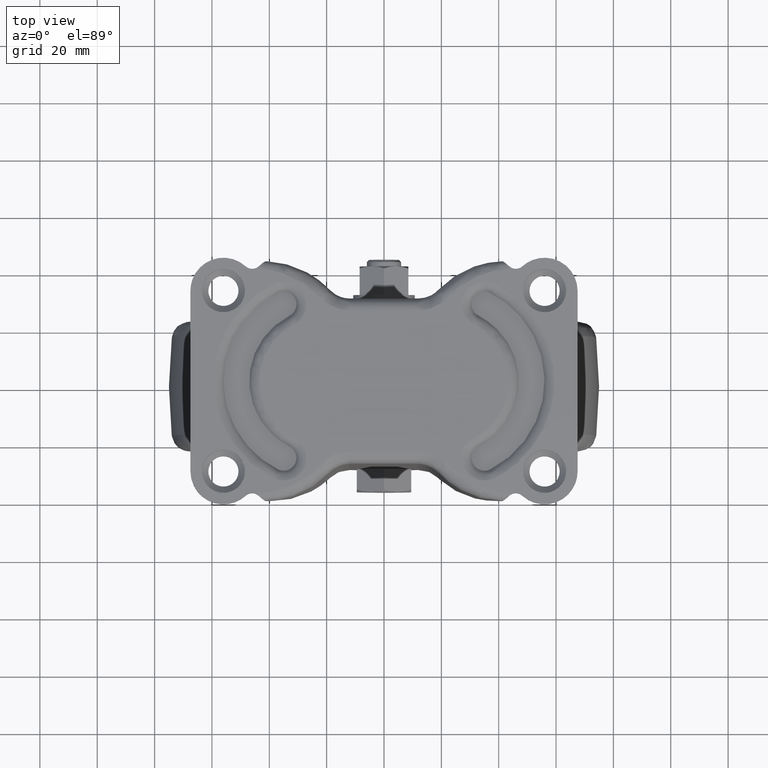
[diagram: clean part render]
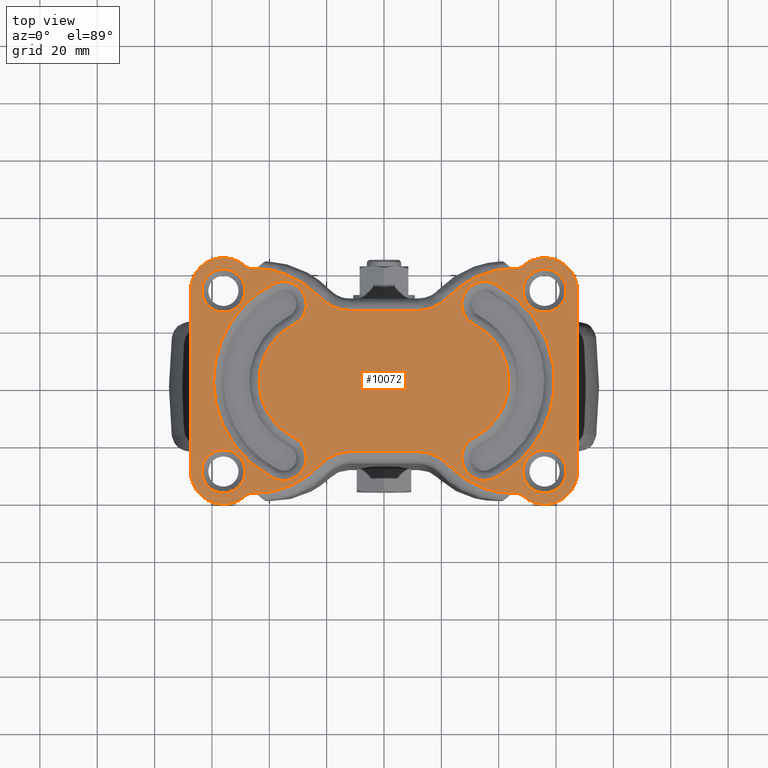
[diagram: same view with one face highlighted and labeled with its STEP entity id]
A machine part, top view. The second image highlights one B-rep face of the part: STEP entity #10072.
In plain terms, the highlighted face is a freeform B-spline surface patch.
Its self-contained STEP definition (entity closure, byte-faithful):
#4401=CARTESIAN_POINT('',(-56.457864046673372,38.986010988154092,-5.204170E-017));
#4402=VERTEX_POINT('',#4401);
#4403=CARTESIAN_POINT('',(-48.500000000000000,31.500000000000000,0.0));
#4404=VERTEX_POINT('',#4403);
#4405=CARTESIAN_POINT('',(-56.457864046673357,38.986010988154099,0.0));
#4406=CARTESIAN_POINT('',(-56.229145724820611,39.000000000000007,0.0));
#4407=CARTESIAN_POINT('',(-56.0,39.0,0.0));
#4408=CARTESIAN_POINT('',(-48.500000000000014,39.0,0.0));
#4409=CARTESIAN_POINT('',(-48.500000000000000,31.500000000000000,0.0));
#4417=(BOUNDED_CURVE()B_SPLINE_CURVE(2,(#4405,#4406,#4407,#4408,#4409),.UNSPECIFIED.,.F.,.U.)B_SPLINE_CURVE_WITH_KNOTS((3,2,3),(0.239332962238236,0.250000000000000,0.500000000000000),.UNSPECIFIED.)CURVE()GEOMETRIC_REPRESENTATION_ITEM()RATIONAL_B_SPLINE_CURVE((0.976072041665202,0.987502787899009,1.0,0.707106781186547,1.0))REPRESENTATION_ITEM(''));
#4418=EDGE_CURVE('',#4402,#4404,#4417,.T.);
#4427=CARTESIAN_POINT('',(-55.542135953326628,24.013989011845901,-5.204170E-017));
#4428=VERTEX_POINT('',#4427);
#4434=CARTESIAN_POINT('',(-48.500000000000000,31.500000000000000,0.0));
#4435=CARTESIAN_POINT('',(-48.500000000000000,24.444704498360196,0.0));
#4436=CARTESIAN_POINT('',(-55.542135953326635,24.013989011845904,0.0));
#4444=(BOUNDED_CURVE()B_SPLINE_CURVE(2,(#4434,#4435,#4436),.UNSPECIFIED.,.F.,.U.)B_SPLINE_CURVE_WITH_KNOTS((3,3),(0.500000000000000,0.739332962238236),.UNSPECIFIED.)CURVE()GEOMETRIC_REPRESENTATION_ITEM()RATIONAL_B_SPLINE_CURVE((1.0,0.719603993287539,0.976072041665202))REPRESENTATION_ITEM(''));
#4445=EDGE_CURVE('',#4404,#4428,#4444,.T.);
#4468=CARTESIAN_POINT('',(-63.500000000000000,31.500000000000000,0.0));
#4469=VERTEX_POINT('',#4468);
#4470=CARTESIAN_POINT('',(-63.500000000000000,31.500000000000000,0.0));
#4471=CARTESIAN_POINT('',(-63.500000000000000,38.555295501639804,0.0));
#4472=CARTESIAN_POINT('',(-56.457864046673372,38.986010988154099,0.0));
#4480=(BOUNDED_CURVE()B_SPLINE_CURVE(2,(#4470,#4471,#4472),.UNSPECIFIED.,.F.,.U.)B_SPLINE_CURVE_WITH_KNOTS((3,3),(0.0,0.239332962238236),.UNSPECIFIED.)CURVE()GEOMETRIC_REPRESENTATION_ITEM()RATIONAL_B_SPLINE_CURVE((1.0,0.719603993287539,0.976072041665202))REPRESENTATION_ITEM(''));
#4481=EDGE_CURVE('',#4469,#4402,#4480,.T.);
#4483=CARTESIAN_POINT('',(-55.542135953326635,24.013989011845904,0.0));
#4484=CARTESIAN_POINT('',(-55.770854275179374,24.000000000000007,0.0));
#4485=CARTESIAN_POINT('',(-56.0,24.0,0.0));
#4486=CARTESIAN_POINT('',(-63.499999999999993,24.0,0.0));
#4487=CARTESIAN_POINT('',(-63.500000000000000,31.500000000000000,0.0));
#4495=(BOUNDED_CURVE()B_SPLINE_CURVE(2,(#4483,#4484,#4485,#4486,#4487),.UNSPECIFIED.,.F.,.U.)B_SPLINE_CURVE_WITH_KNOTS((3,2,3),(0.739332962238236,0.750000000000000,1.0),.UNSPECIFIED.)CURVE()GEOMETRIC_REPRESENTATION_ITEM()RATIONAL_B_SPLINE_CURVE((0.976072041665202,0.987502787899009,1.0,0.707106781186547,1.0))REPRESENTATION_ITEM(''));
#4496=EDGE_CURVE('',#4428,#4469,#4495,.T.);
#4523=CARTESIAN_POINT('',(-56.457864046673372,-24.013989011845901,-5.204170E-017));
#4524=VERTEX_POINT('',#4523);
#4525=CARTESIAN_POINT('',(-48.500000000000000,-31.500000000000000,0.0));
#4526=VERTEX_POINT('',#4525);
#4527=CARTESIAN_POINT('',(-56.457864046673357,-24.013989011845908,0.0));
#4528=CARTESIAN_POINT('',(-56.229145724820611,-24.0,0.0));
#4529=CARTESIAN_POINT('',(-56.0,-24.0,0.0));
#4530=CARTESIAN_POINT('',(-48.500000000000014,-24.0,0.0));
#4531=CARTESIAN_POINT('',(-48.500000000000000,-31.500000000000000,0.0));
#4539=(BOUNDED_CURVE()B_SPLINE_CURVE(2,(#4527,#4528,#4529,#4530,#4531),.UNSPECIFIED.,.F.,.U.)B_SPLINE_CURVE_WITH_KNOTS((3,2,3),(0.239332962238236,0.250000000000000,0.500000000000000),.UNSPECIFIED.)CURVE()GEOMETRIC_REPRESENTATION_ITEM()RATIONAL_B_SPLINE_CURVE((0.976072041665202,0.987502787899009,1.0,0.707106781186547,1.0))REPRESENTATION_ITEM(''));
#4540=EDGE_CURVE('',#4524,#4526,#4539,.T.);
#4549=CARTESIAN_POINT('',(-55.542135953326643,-38.986010988154092,-5.204170E-017));
#4550=VERTEX_POINT('',#4549);
#4556=CARTESIAN_POINT('',(-48.500000000000000,-31.500000000000000,0.0));
#4557=CARTESIAN_POINT('',(-48.500000000000007,-38.555295501639812,0.0));
#4558=CARTESIAN_POINT('',(-55.542135953326621,-38.986010988154092,0.0));
#4566=(BOUNDED_CURVE()B_SPLINE_CURVE(2,(#4556,#4557,#4558),.UNSPECIFIED.,.F.,.U.)B_SPLINE_CURVE_WITH_KNOTS((3,3),(0.500000000000000,0.739332962238236),.UNSPECIFIED.)CURVE()GEOMETRIC_REPRESENTATION_ITEM()RATIONAL_B_SPLINE_CURVE((1.0,0.719603993287539,0.976072041665202))REPRESENTATION_ITEM(''));
#4567=EDGE_CURVE('',#4526,#4550,#4566,.T.);
#4590=CARTESIAN_POINT('',(-63.500000000000000,-31.500000000000000,0.0));
#4591=VERTEX_POINT('',#4590);
#4592=CARTESIAN_POINT('',(-63.500000000000000,-31.500000000000000,0.0));
#4593=CARTESIAN_POINT('',(-63.499999999999993,-24.444704498360199,0.0));
#4594=CARTESIAN_POINT('',(-56.457864046673372,-24.013989011845901,0.0));
#4602=(BOUNDED_CURVE()B_SPLINE_CURVE(2,(#4592,#4593,#4594),.UNSPECIFIED.,.F.,.U.)B_SPLINE_CURVE_WITH_KNOTS((3,3),(0.0,0.239332962238236),.UNSPECIFIED.)CURVE()GEOMETRIC_REPRESENTATION_ITEM()RATIONAL_B_SPLINE_CURVE((1.0,0.719603993287539,0.976072041665202))REPRESENTATION_ITEM(''));
#4603=EDGE_CURVE('',#4591,#4524,#4602,.T.);
#4605=CARTESIAN_POINT('',(-55.542135953326621,-38.986010988154092,0.0));
#4606=CARTESIAN_POINT('',(-55.770854275179381,-39.000000000000007,0.0));
#4607=CARTESIAN_POINT('',(-56.0,-39.0,0.0));
#4608=CARTESIAN_POINT('',(-63.499999999999993,-39.0,0.0));
#4609=CARTESIAN_POINT('',(-63.500000000000000,-31.500000000000000,0.0));
#4617=(BOUNDED_CURVE()B_SPLINE_CURVE(2,(#4605,#4606,#4607,#4608,#4609),.UNSPECIFIED.,.F.,.U.)B_SPLINE_CURVE_WITH_KNOTS((3,2,3),(0.739332962238236,0.750000000000000,1.0),.UNSPECIFIED.)CURVE()GEOMETRIC_REPRESENTATION_ITEM()RATIONAL_B_SPLINE_CURVE((0.976072041665202,0.987502787899009,1.0,0.707106781186547,1.0))REPRESENTATION_ITEM(''));
#4618=EDGE_CURVE('',#4550,#4591,#4617,.T.);
#4645=CARTESIAN_POINT('',(55.542135953326643,-24.013989011845901,-5.204170E-017));
#4646=VERTEX_POINT('',#4645);
#4647=CARTESIAN_POINT('',(63.500000000000000,-31.500000000000000,0.0));
#4648=VERTEX_POINT('',#4647);
#4649=CARTESIAN_POINT('',(55.542135953326635,-24.013989011845904,0.0));
#4650=CARTESIAN_POINT('',(55.770854275179374,-24.000000000000007,0.0));
#4651=CARTESIAN_POINT('',(56.0,-24.0,0.0));
#4652=CARTESIAN_POINT('',(63.499999999999993,-24.0,0.0));
#4653=CARTESIAN_POINT('',(63.500000000000000,-31.500000000000000,0.0));
#4661=(BOUNDED_CURVE()B_SPLINE_CURVE(2,(#4649,#4650,#4651,#4652,#4653),.UNSPECIFIED.,.F.,.U.)B_SPLINE_CURVE_WITH_KNOTS((3,2,3),(0.239332962238236,0.250000000000000,0.500000000000000),.UNSPECIFIED.)CURVE()GEOMETRIC_REPRESENTATION_ITEM()RATIONAL_B_SPLINE_CURVE((0.976072041665202,0.987502787899009,1.0,0.707106781186547,1.0))REPRESENTATION_ITEM(''));
#4662=EDGE_CURVE('',#4646,#4648,#4661,.T.);
#4671=CARTESIAN_POINT('',(56.457864046673372,-38.986010988154092,-5.204170E-017));
#4672=VERTEX_POINT('',#4671);
#4678=CARTESIAN_POINT('',(63.500000000000000,-31.500000000000000,0.0));
#4679=CARTESIAN_POINT('',(63.500000000000000,-38.555295501639804,0.0));
#4680=CARTESIAN_POINT('',(56.457864046673357,-38.986010988154099,0.0));
#4688=(BOUNDED_CURVE()B_SPLINE_CURVE(2,(#4678,#4679,#4680),.UNSPECIFIED.,.F.,.U.)B_SPLINE_CURVE_WITH_KNOTS((3,3),(0.500000000000000,0.739332962238236),.UNSPECIFIED.)CURVE()GEOMETRIC_REPRESENTATION_ITEM()RATIONAL_B_SPLINE_CURVE((1.0,0.719603993287539,0.976072041665202))REPRESENTATION_ITEM(''));
#4689=EDGE_CURVE('',#4648,#4672,#4688,.T.);
#4712=CARTESIAN_POINT('',(48.500000000000000,-31.500000000000000,0.0));
#4713=VERTEX_POINT('',#4712);
#4714=CARTESIAN_POINT('',(48.500000000000000,-31.500000000000000,0.0));
#4715=CARTESIAN_POINT('',(48.500000000000007,-24.444704498360192,0.0));
#4716=CARTESIAN_POINT('',(55.542135953326635,-24.013989011845901,0.0));
#4724=(BOUNDED_CURVE()B_SPLINE_CURVE(2,(#4714,#4715,#4716),.UNSPECIFIED.,.F.,.U.)B_SPLINE_CURVE_WITH_KNOTS((3,3),(0.0,0.239332962238236),.UNSPECIFIED.)CURVE()GEOMETRIC_REPRESENTATION_ITEM()RATIONAL_B_SPLINE_CURVE((1.0,0.719603993287539,0.976072041665202))REPRESENTATION_ITEM(''));
#4725=EDGE_CURVE('',#4713,#4646,#4724,.T.);
#4727=CARTESIAN_POINT('',(56.457864046673379,-38.986010988154099,0.0));
#4728=CARTESIAN_POINT('',(56.229145724820626,-39.0,0.0));
#4729=CARTESIAN_POINT('',(56.0,-39.0,0.0));
#4730=CARTESIAN_POINT('',(48.500000000000014,-39.0,0.0));
#4731=CARTESIAN_POINT('',(48.500000000000000,-31.500000000000000,0.0));
#4739=(BOUNDED_CURVE()B_SPLINE_CURVE(2,(#4727,#4728,#4729,#4730,#4731),.UNSPECIFIED.,.F.,.U.)B_SPLINE_CURVE_WITH_KNOTS((3,2,3),(0.739332962238236,0.750000000000000,1.0),.UNSPECIFIED.)CURVE()GEOMETRIC_REPRESENTATION_ITEM()RATIONAL_B_SPLINE_CURVE((0.976072041665202,0.987502787899009,1.0,0.707106781186547,1.0))REPRESENTATION_ITEM(''));
#4740=EDGE_CURVE('',#4672,#4713,#4739,.T.);
#5700=CARTESIAN_POINT('',(38.597904086651248,33.852036572994798,0.0));
#5701=VERTEX_POINT('',#5700);
#5716=CARTESIAN_POINT('',(38.597904414851598,-33.852036407228148,0.0));
#5717=VERTEX_POINT('',#5716);
#5731=CARTESIAN_POINT('',(38.597904086651248,33.852036572994798,0.0));
#5732=CARTESIAN_POINT('',(40.931966710260511,32.673595723070910,0.0));
#5733=CARTESIAN_POINT('',(44.525228215176519,30.363947643651180,0.0));
#5734=CARTESIAN_POINT('',(49.527667671446203,25.804153182381491,0.0));
#5735=CARTESIAN_POINT('',(53.392547249972900,20.904662249175960,0.0));
#5736=CARTESIAN_POINT('',(56.410038078040209,15.204737273204779,0.0));
#5737=CARTESIAN_POINT('',(58.438324202625971,9.317776442543631,0.0));
#5738=CARTESIAN_POINT('',(59.408043265400657,3.601754816384176,0.0));
#5739=CARTESIAN_POINT('',(59.475585013627558,-1.638085896345006,0.0));
#5740=CARTESIAN_POINT('',(58.991369361824518,-6.303885503761990,0.0));
#5741=CARTESIAN_POINT('',(57.972309602413212,-10.775807134441569,0.0));
#5742=CARTESIAN_POINT('',(56.386031487333227,-15.076636955202220,0.0));
#5743=CARTESIAN_POINT('',(54.378911079913060,-19.073743013255221,0.0));
#5744=CARTESIAN_POINT('',(52.099455562631931,-22.539964444799459,0.0));
#5745=CARTESIAN_POINT('',(49.240070813480607,-25.978069962966210,0.0));
#5746=CARTESIAN_POINT('',(45.066369134887147,-29.985600884868010,0.0));
#5747=CARTESIAN_POINT('',(41.223788187590529,-32.526358784105042,0.0));
#5748=CARTESIAN_POINT('',(38.597904414851598,-33.852036407228148,0.0));
#5749=B_SPLINE_CURVE_WITH_KNOTS('',3,(#5731,#5732,#5733,#5734,#5735,#5736,#5737,#5738,#5739,#5740,#5741,#5742,#5743,#5744,#5745,#5746,#5747,#5748),.UNSPECIFIED.,.F.,.U.,(4,1,1,1,1,1,1,1,1,1,1,1,1,1,1,4),(0.000000012382358,7.843974008450616,12.746531260770340,20.263779729720621,26.473671680150741,32.029862635009437,38.893432117385949,43.795874821886990,47.717861126122102,52.947247920379453,57.522965918581647,61.445008649290131,66.347563152554457,69.942765911510818,74.845304125451946,83.669807241726502),.UNSPECIFIED.);
#5750=EDGE_CURVE('',#5701,#5717,#5749,.T.);
#5780=CARTESIAN_POINT('',(31.452240329807651,-19.704379285813701,0.0));
#5781=VERTEX_POINT('',#5780);
#5795=CARTESIAN_POINT('',(38.597904414851598,-33.852036407228148,0.0));
#5796=CARTESIAN_POINT('',(38.106031376104561,-34.100529093011708,0.0));
#5797=CARTESIAN_POINT('',(36.948305458958401,-34.540821605779144,0.0));
#5798=CARTESIAN_POINT('',(35.198158089413731,-34.770082778650142,0.0));
#5799=CARTESIAN_POINT('',(33.479745066140246,-34.603088864187427,0.0));
#5800=CARTESIAN_POINT('',(32.107628309762703,-34.188857633199092,0.0));
#5801=CARTESIAN_POINT('',(30.858317566028919,-33.562107170256297,0.0));
#5802=CARTESIAN_POINT('',(29.569714633199769,-32.621700267727782,0.0));
#5803=CARTESIAN_POINT('',(28.392742726378419,-31.260855156970230,0.0));
#5804=CARTESIAN_POINT('',(27.495686004245972,-29.484891678885429,0.0));
#5805=CARTESIAN_POINT('',(27.088656092749400,-27.733771555715681,0.0));
#5806=CARTESIAN_POINT('',(27.086673970325471,-26.170202709527370,0.0));
#5807=CARTESIAN_POINT('',(27.315185874988689,-24.791868496765922,0.0));
#5808=CARTESIAN_POINT('',(27.695128475517080,-23.682463950133080,0.0));
#5809=CARTESIAN_POINT('',(28.359063530665221,-22.417526351214160,0.0));
#5810=CARTESIAN_POINT('',(29.452688610364980,-20.993995784507341,0.0));
#5811=CARTESIAN_POINT('',(30.670657015552312,-20.098520285843069,0.0));
#5812=CARTESIAN_POINT('',(31.452240329807651,-19.704379285813701,0.0));
#5813=B_SPLINE_CURVE_WITH_KNOTS('',3,(#5795,#5796,#5797,#5798,#5799,#5800,#5801,#5802,#5803,#5804,#5805,#5806,#5807,#5808,#5809,#5810,#5811,#5812),.UNSPECIFIED.,.F.,.U.,(4,1,1,1,1,1,1,1,1,1,1,1,1,1,1,4),(0.000000557333230,1.653256464006581,3.695646773744475,5.251713261574153,6.807786920026786,7.974872695545727,9.433553389933525,11.573208252643250,13.323784568114400,15.366135614394731,16.922127763391359,17.991935994868900,19.548028172542669,20.423305568468070,22.271144160644901,24.896992175662159),.UNSPECIFIED.);
#5814=EDGE_CURVE('',#5717,#5781,#5813,.T.);
#5843=CARTESIAN_POINT('',(31.452239941177400,19.704379482101899,0.0));
#5844=VERTEX_POINT('',#5843);
#5845=CARTESIAN_POINT('',(31.452239941177400,19.704379482101899,0.0));
#5846=CARTESIAN_POINT('',(30.873454662931689,19.996522498176638,0.0));
#5847=CARTESIAN_POINT('',(29.951116521028169,20.614986830008071,0.0));
#5848=CARTESIAN_POINT('',(28.725701273337080,21.874177137721521,0.0));
#5849=CARTESIAN_POINT('',(27.818943863218479,23.310350393912000,0.0));
#5850=CARTESIAN_POINT('',(27.163565603385489,25.223518145384091,0.0));
#5851=CARTESIAN_POINT('',(27.023946160418770,27.151896679093209,0.0));
#5852=CARTESIAN_POINT('',(27.332400736146688,28.851727205921421,0.0));
#5853=CARTESIAN_POINT('',(27.866646399855561,30.283010848795389,0.0));
#5854=CARTESIAN_POINT('',(28.757187767085640,31.764579343642190,0.0));
#5855=CARTESIAN_POINT('',(30.039976541478790,33.028324187249943,0.0));
#5856=CARTESIAN_POINT('',(31.703616987839350,34.050183055315131,0.0));
#5857=CARTESIAN_POINT('',(33.410708806153593,34.623224736647373,0.0));
#5858=CARTESIAN_POINT('',(35.362667565092003,34.764410658786773,0.0));
#5859=CARTESIAN_POINT('',(37.071808808971767,34.497675359053943,0.0));
#5860=CARTESIAN_POINT('',(38.134953628088148,34.085913099299177,0.0));
#5861=CARTESIAN_POINT('',(38.597904086651248,33.852036572994798,0.0));
#5862=B_SPLINE_CURVE_WITH_KNOTS('',3,(#5845,#5846,#5847,#5848,#5849,#5850,#5851,#5852,#5853,#5854,#5855,#5856,#5857,#5858,#5859,#5860,#5861),.UNSPECIFIED.,.F.,.U.,(4,1,1,1,1,1,1,1,1,1,1,1,1,1,4),(0.000000700773196,1.944977240824642,3.306613750560050,5.251707336721047,7.002286776047303,9.336434076374887,10.989777569373510,12.156785098396229,13.907279785375170,16.144078191127509,17.505692759194620,19.742551811719171,21.493130062375808,23.340965471485390,24.896991351663960),.UNSPECIFIED.);
#5863=EDGE_CURVE('',#5844,#5701,#5862,.T.);
#5908=CARTESIAN_POINT('',(31.452240329807651,-19.704379285813701,0.0));
#5909=CARTESIAN_POINT('',(32.471129331467672,-19.189834077580350,0.0));
#5910=CARTESIAN_POINT('',(34.265646609911329,-18.101149827396650,0.0));
#5911=CARTESIAN_POINT('',(36.573934435925239,-16.205878316565880,0.0));
#5912=CARTESIAN_POINT('',(38.452689483774762,-14.222739618930101,0.0));
#5913=CARTESIAN_POINT('',(40.154755471046791,-11.925798101780179,0.0));
#5914=CARTESIAN_POINT('',(41.905815163845212,-8.752490807966328,0.0));
#5915=CARTESIAN_POINT('',(43.086033968472407,-5.177373089500384,0.0));
#5916=CARTESIAN_POINT('',(43.627532006324223,-1.273680945418487,0.0));
#5917=CARTESIAN_POINT('',(43.573762767007757,1.844622787591696,0.0));
#5918=CARTESIAN_POINT('',(42.989083542199758,5.481744089083992,0.0));
#5919=CARTESIAN_POINT('',(41.895348245311759,8.747676783565296,0.0));
#5920=CARTESIAN_POINT('',(40.310816759860991,11.648574434863111,0.0));
#5921=CARTESIAN_POINT('',(38.549803358080879,14.135528917402709,0.0));
#5922=CARTESIAN_POINT('',(35.847182279054309,17.013163587151030,0.0));
#5923=CARTESIAN_POINT('',(33.150657724022452,18.847223787616169,0.0));
#5924=CARTESIAN_POINT('',(31.452239941177400,19.704379482101899,0.0));
#5925=B_SPLINE_CURVE_WITH_KNOTS('',3,(#5908,#5909,#5910,#5911,#5912,#5913,#5914,#5915,#5916,#5917,#5918,#5919,#5920,#5921,#5922,#5923,#5924),.UNSPECIFIED.,.F.,.U.,(4,1,1,1,1,1,1,1,1,1,1,1,1,1,4),(0.000000200846728,3.424327120793940,6.277938105191502,8.941353372054934,11.604768848557750,14.838915670574520,19.785216166574038,22.829080438230520,26.633888061475059,29.106985432393870,33.863090960728428,36.906983960665087,38.999666596141211,42.994785582982850,48.701992445574362),.UNSPECIFIED.);
#5926=EDGE_CURVE('',#5781,#5844,#5925,.T.);
#5954=CARTESIAN_POINT('',(-31.452239935293200,-19.704379554226250,0.0));
#5955=VERTEX_POINT('',#5954);
#5969=CARTESIAN_POINT('',(-31.452239941177400,19.704379482101849,0.0));
#5970=VERTEX_POINT('',#5969);
#5971=CARTESIAN_POINT('',(-31.452239941177400,19.704379482101849,0.0));
#5972=CARTESIAN_POINT('',(-33.320678656251623,18.761724080207010,0.0));
#5973=CARTESIAN_POINT('',(-35.892594015316853,16.962746102790099,0.0));
#5974=CARTESIAN_POINT('',(-38.578106224771972,14.078320297285000,0.0));
#5975=CARTESIAN_POINT('',(-40.249946874290131,11.760165227366450,0.0));
#5976=CARTESIAN_POINT('',(-41.559968586969802,9.361259684301585,0.0));
#5977=CARTESIAN_POINT('',(-42.756431005189697,6.281962741435025,0.0));
#5978=CARTESIAN_POINT('',(-43.450973371825903,3.108475052089542,0.0));
#5979=CARTESIAN_POINT('',(-43.660795715398542,-0.634917068811848,0.0));
#5980=CARTESIAN_POINT('',(-43.279541892163138,-4.309690877486286,0.0));
#5981=CARTESIAN_POINT('',(-42.155509292380920,-8.094131250553440,0.0));
#5982=CARTESIAN_POINT('',(-40.683435553137549,-11.057191146117450,0.0));
#5983=CARTESIAN_POINT('',(-39.011490903456092,-13.529361539994850,0.0));
#5984=CARTESIAN_POINT('',(-37.218913093948643,-15.592759533566531,0.0));
#5985=CARTESIAN_POINT('',(-34.691136224253462,-17.818415515014131,0.0));
#5986=CARTESIAN_POINT('',(-32.697592675574818,-19.075579762250250,0.0));
#5987=CARTESIAN_POINT('',(-31.452239935293200,-19.704379554226250,0.0));
#5988=B_SPLINE_CURVE_WITH_KNOTS('',3,(#5971,#5972,#5973,#5974,#5975,#5976,#5977,#5978,#5979,#5980,#5981,#5982,#5983,#5984,#5985,#5986,#5987),.UNSPECIFIED.,.F.,.U.,(4,1,1,1,1,1,1,1,1,1,1,1,1,1,4),(0.000000223322743,6.277938185743565,9.321858492997130,11.795014948144161,14.838915830326039,17.502329689751171,21.687690423234390,24.541165929923221,28.726560977342679,32.721646541695492,36.336252884388223,38.619161509651143,41.663081130303553,44.516735328602323,48.701992918868022),.UNSPECIFIED.);
#5989=EDGE_CURVE('',#5970,#5955,#5988,.T.);
#6032=CARTESIAN_POINT('',(-38.597904058823012,33.852036517897801,0.0));
#6033=VERTEX_POINT('',#6032);
#6034=CARTESIAN_POINT('',(-38.597904058823012,33.852036517897801,0.0));
#6035=CARTESIAN_POINT('',(-37.787875440516423,34.261834744146199,0.0));
#6036=CARTESIAN_POINT('',(-36.403098821185360,34.682936094536139,0.0));
#6037=CARTESIAN_POINT('',(-34.384092676666960,34.735084385819313,0.0));
#6038=CARTESIAN_POINT('',(-32.652097610054369,34.415179228163517,0.0));
#6039=CARTESIAN_POINT('',(-31.068592862709480,33.715810498686480,0.0));
#6040=CARTESIAN_POINT('',(-29.569800012781030,32.621612856323623,0.0));
#6041=CARTESIAN_POINT('',(-28.392635731126930,31.260916542585111,0.0));
#6042=CARTESIAN_POINT('',(-27.642898096402959,29.775970478889221,0.0));
#6043=CARTESIAN_POINT('',(-27.197233393881788,28.281339184187139,0.0));
#6044=CARTESIAN_POINT('',(-27.052632803600769,26.918242505362478,0.0));
#6045=CARTESIAN_POINT('',(-27.181713611830610,25.395934659909681,0.0));
#6046=CARTESIAN_POINT('',(-27.594425541056900,23.820360056997401,0.0));
#6047=CARTESIAN_POINT('',(-28.409690667491009,22.290168496343149,0.0));
#6048=CARTESIAN_POINT('',(-29.714079108748710,20.792646900079319,0.0));
#6049=CARTESIAN_POINT('',(-30.757576895772711,20.054842948487849,0.0));
#6050=CARTESIAN_POINT('',(-31.452239941177400,19.704379482101849,0.0));
#6051=B_SPLINE_CURVE_WITH_KNOTS('',3,(#6034,#6035,#6036,#6037,#6038,#6039,#6040,#6041,#6042,#6043,#6044,#6045,#6046,#6047,#6048,#6049,#6050),.UNSPECIFIED.,.F.,.U.,(4,1,1,1,1,1,1,1,1,1,1,1,1,1,4),(0.000000557265651,2.723098538479370,4.279174959097446,6.029743375359605,7.974872431463382,9.433553077595279,11.573207869468609,13.323784126989469,14.393614963865859,16.241479279168299,17.408370604845061,18.964465294316419,21.104097454840190,22.562918666784590,24.896991351436672),.UNSPECIFIED.);
#6052=EDGE_CURVE('',#6033,#5970,#6051,.T.);
#6096=CARTESIAN_POINT('',(-38.597904584616799,-33.852036252331352,0.0));
#6097=VERTEX_POINT('',#6096);
#6111=CARTESIAN_POINT('',(-31.452239935293200,-19.704379554226250,0.0));
#6112=CARTESIAN_POINT('',(-30.786540237162431,-20.040282644671120,0.0));
#6113=CARTESIAN_POINT('',(-29.900511329012389,-20.658541404028711,0.0));
#6114=CARTESIAN_POINT('',(-28.849486054604611,-21.765633544345771,0.0));
#6115=CARTESIAN_POINT('',(-28.157620887571230,-22.750855886636330,0.0));
#6116=CARTESIAN_POINT('',(-27.469234963300579,-24.188105138990700,0.0));
#6117=CARTESIAN_POINT('',(-27.093481867097530,-25.779988764335631,0.0));
#6118=CARTESIAN_POINT('',(-27.086292716964149,-27.342641750029021,0.0));
#6119=CARTESIAN_POINT('',(-27.291599579044089,-28.658855197061119,0.0));
#6120=CARTESIAN_POINT('',(-27.754451575519969,-30.083140445298010,0.0));
#6121=CARTESIAN_POINT('',(-28.578742589628849,-31.492977695037869,0.0));
#6122=CARTESIAN_POINT('',(-29.703030775953440,-32.714742530935723,0.0));
#6123=CARTESIAN_POINT('',(-30.803018445091499,-33.528183750168132,0.0));
#6124=CARTESIAN_POINT('',(-32.047972076776396,-34.162305859631772,0.0));
#6125=CARTESIAN_POINT('',(-33.259570589563289,-34.544332558336940,0.0));
#6126=CARTESIAN_POINT('',(-34.709331067057143,-34.739180661787650,0.0));
#6127=CARTESIAN_POINT('',(-36.500284774351577,-34.659918007192317,0.0));
#6128=CARTESIAN_POINT('',(-37.845734704178163,-34.232473313818872,0.0));
#6129=CARTESIAN_POINT('',(-38.597904584616799,-33.852036252331352,0.0));
#6130=B_SPLINE_CURVE_WITH_KNOTS('',3,(#6111,#6112,#6113,#6114,#6115,#6116,#6117,#6118,#6119,#6120,#6121,#6122,#6123,#6124,#6125,#6126,#6127,#6128,#6129),.UNSPECIFIED.,.F.,.U.,(4,1,1,1,1,1,1,1,1,1,1,1,1,1,1,1,4),(0.000000557179902,2.236828646020431,3.209372059846213,4.570944046939207,5.835265645956767,7.974872601205497,9.433553278417522,10.503377256197689,11.962214290460720,13.907339319640050,15.366135432819780,16.922127563452879,17.991935782308371,19.548027941618749,20.715075129449250,22.368428952835110,24.896991881598112),.UNSPECIFIED.);
#6131=EDGE_CURVE('',#5955,#6097,#6130,.T.);
#6160=CARTESIAN_POINT('',(-38.597904584616799,-33.852036252331352,0.0));
#6161=CARTESIAN_POINT('',(-39.959338937679433,-33.164451621335502,0.0));
#6162=CARTESIAN_POINT('',(-42.693377442446582,-31.569722434913469,0.0));
#6163=CARTESIAN_POINT('',(-46.422029099494907,-28.717597113999339,0.0));
#6164=CARTESIAN_POINT('',(-50.154054102989491,-25.040899719200290,0.0));
#6165=CARTESIAN_POINT('',(-53.067298996438772,-21.213934926756419,0.0));
#6166=CARTESIAN_POINT('',(-55.511795289141070,-16.957941846843308,0.0));
#6167=CARTESIAN_POINT('',(-57.467289541074621,-12.451110232842749,0.0));
#6168=CARTESIAN_POINT('',(-59.029551408253582,-6.645548431817582,0.0));
#6169=CARTESIAN_POINT('',(-59.563221066282040,-0.762626217675782,0.0));
#6170=CARTESIAN_POINT('',(-59.214416561010140,5.011424492024234,0.0));
#6171=CARTESIAN_POINT('',(-58.267643654913734,9.725256624043503,0.0));
#6172=CARTESIAN_POINT('',(-56.583283265296622,14.683351096546030,0.0));
#6173=CARTESIAN_POINT('',(-54.125645573721997,19.685121254945170,0.0));
#6174=CARTESIAN_POINT('',(-50.670274573139963,24.476248740893269,0.0));
#6175=CARTESIAN_POINT('',(-47.061789561006108,28.124192975479090,0.0));
#6176=CARTESIAN_POINT('',(-43.241869669250647,31.205896186873218,0.0));
#6177=CARTESIAN_POINT('',(-40.445621234835393,32.918983513022361,0.0));
#6178=CARTESIAN_POINT('',(-38.597904058823012,33.852036517897801,0.0));
#6179=B_SPLINE_CURVE_WITH_KNOTS('',3,(#6160,#6161,#6162,#6163,#6164,#6165,#6166,#6167,#6168,#6169,#6170,#6171,#6172,#6173,#6174,#6175,#6176,#6177,#6178),.UNSPECIFIED.,.F.,.U.,(4,1,1,1,1,1,1,1,1,1,1,1,1,1,1,1,4),(-0.000000010260351,4.575651684570843,9.478195207273970,14.053899045843030,20.263779653606811,23.858980485831768,28.761534461438561,34.971438213531407,41.834904680309542,46.410515399457083,52.293574391744123,56.215622006000920,62.098682761179802,68.962241560353007,73.864769721093481,77.460012340410501,83.669806998010401),.UNSPECIFIED.);
#6180=EDGE_CURVE('',#6097,#6033,#6179,.T.);
#6323=CARTESIAN_POINT('',(-45.286515062644199,39.193457646801853,0.0));
#6324=VERTEX_POINT('',#6323);
#6344=CARTESIAN_POINT('',(-21.962988814587352,28.933892902993652,0.0));
#6345=VERTEX_POINT('',#6344);
#6346=CARTESIAN_POINT('',(-21.962988814587352,28.933892902993652,0.0));
#6347=CARTESIAN_POINT('',(-23.231662275400531,30.272688913003531,0.0));
#6348=CARTESIAN_POINT('',(-25.309924630619360,32.164265818422201,0.0));
#6349=CARTESIAN_POINT('',(-28.833158265214951,34.644225008631913,0.0));
#6350=CARTESIAN_POINT('',(-32.019370281881599,36.382791224334433,0.0));
#6351=CARTESIAN_POINT('',(-35.520437812346870,37.763545712830648,0.0));
#6352=CARTESIAN_POINT('',(-38.757809937000687,38.636556505252038,0.0));
#6353=CARTESIAN_POINT('',(-42.005413624396027,39.128637177730702,0.0));
#6354=CARTESIAN_POINT('',(-44.193537614191641,39.211439298621819,0.0));
#6355=CARTESIAN_POINT('',(-45.286515062644199,39.193457646801853,0.0));
#6356=B_SPLINE_CURVE_WITH_KNOTS('',3,(#6346,#6347,#6348,#6349,#6350,#6351,#6352,#6353,#6354,#6355),.UNSPECIFIED.,.F.,.U.,(4,1,1,1,1,1,1,4),(-0.000008224467472,5.534112363322038,8.403576103568970,12.912817930375629,16.397217855433350,19.676638349097271,22.956036634758391,26.235500857588079),.UNSPECIFIED.);
#6357=EDGE_CURVE('',#6345,#6324,#6356,.T.);
#6452=CARTESIAN_POINT('',(-11.998855098554341,24.650000000047651,0.0));
#6453=VERTEX_POINT('',#6452);
#6454=CARTESIAN_POINT('',(-11.998855098554341,24.650000000047701,0.0));
#6455=CARTESIAN_POINT('',(-17.901811766308210,24.650000000047694,0.0));
#6456=CARTESIAN_POINT('',(-21.962988814587330,28.933892902993669,0.0));
#6464=(BOUNDED_CURVE()B_SPLINE_CURVE(2,(#6454,#6455,#6456),.UNSPECIFIED.,.F.,.U.)CURVE()GEOMETRIC_REPRESENTATION_ITEM()QUASI_UNIFORM_CURVE()RATIONAL_B_SPLINE_CURVE((1.0,0.918692092121067,1.0))REPRESENTATION_ITEM(''));
#6465=EDGE_CURVE('',#6453,#6345,#6464,.T.);
#6512=CARTESIAN_POINT('',(11.998857618558160,24.650000999952351,0.0));
#6513=VERTEX_POINT('',#6512);
#6514=CARTESIAN_POINT('',(11.998857618558160,24.650000999952351,0.0));
#6515=CARTESIAN_POINT('',(-11.998855098554341,24.650000000047651,0.0));
#6516=QUASI_UNIFORM_CURVE('',1,(#6514,#6515),.UNSPECIFIED.,.F.,.U.);
#6517=EDGE_CURVE('',#6513,#6453,#6516,.T.);
#6560=CARTESIAN_POINT('',(21.962990449121101,28.933893572325399,0.0));
#6561=VERTEX_POINT('',#6560);
#6562=CARTESIAN_POINT('',(21.962990449121090,28.933893572325410,0.0));
#6563=CARTESIAN_POINT('',(17.901813677544510,24.650001245908875,0.0));
#6564=CARTESIAN_POINT('',(11.998857618558169,24.650000999952368,0.0));
#6572=(BOUNDED_CURVE()B_SPLINE_CURVE(2,(#6562,#6563,#6564),.UNSPECIFIED.,.F.,.U.)CURVE()GEOMETRIC_REPRESENTATION_ITEM()QUASI_UNIFORM_CURVE()RATIONAL_B_SPLINE_CURVE((1.0,0.918692106901595,1.0))REPRESENTATION_ITEM(''));
#6573=EDGE_CURVE('',#6561,#6513,#6572,.T.);
#7050=CARTESIAN_POINT('',(45.286516270299799,39.193457607020399,0.0));
#7051=VERTEX_POINT('',#7050);
#7052=CARTESIAN_POINT('',(45.286516270299799,39.193457607020399,0.0));
#7053=CARTESIAN_POINT('',(44.193540506903119,39.211438607789681,0.0));
#7054=CARTESIAN_POINT('',(42.278932461493497,39.138927673006428,0.0));
#7055=CARTESIAN_POINT('',(39.297998706472981,38.730132907286063,0.0));
#7056=CARTESIAN_POINT('',(36.037212480960967,37.948372253571243,0.0));
#7057=CARTESIAN_POINT('',(32.515929733430980,36.611096306200082,0.0));
#7058=CARTESIAN_POINT('',(29.310184822234511,34.914948490358022,0.0));
#7059=CARTESIAN_POINT('',(26.920790909003340,33.320890271122927,0.0));
#7060=CARTESIAN_POINT('',(24.495331511388400,31.429234613386640,0.0));
#7061=CARTESIAN_POINT('',(22.949930958447450,29.975122061133060,0.0));
#7062=CARTESIAN_POINT('',(21.962990449121101,28.933893572325399,0.0));
#7063=B_SPLINE_CURVE_WITH_KNOTS('',3,(#7052,#7053,#7054,#7055,#7056,#7057,#7058,#7059,#7060,#7061,#7062),.UNSPECIFIED.,.F.,.U.,(4,1,1,1,1,1,1,1,4),(0.000027217949359,3.279486969950447,5.739029553540405,9.018436367986976,13.322692972093790,17.012072507088600,19.881579373048659,21.931220686577841,26.235493437478269),.UNSPECIFIED.);
#7064=EDGE_CURVE('',#7051,#6561,#7063,.T.);
#7284=CARTESIAN_POINT('',(45.286516311112202,-39.193457599201800,0.0));
#7285=VERTEX_POINT('',#7284);
#7305=CARTESIAN_POINT('',(21.962990449121101,-28.933893572325399,0.0));
#7306=VERTEX_POINT('',#7305);
#7307=CARTESIAN_POINT('',(21.962990449121101,-28.933893572325399,0.0));
#7308=CARTESIAN_POINT('',(22.950000497655271,-29.975111219256679,0.0));
#7309=CARTESIAN_POINT('',(24.993723750327341,-31.898372092558962,0.0));
#7310=CARTESIAN_POINT('',(28.472297330224531,-34.447354422802462,0.0));
#7311=CARTESIAN_POINT('',(31.538484710310900,-36.120491303793457,0.0));
#7312=CARTESIAN_POINT('',(34.496048085541013,-37.374460207445253,0.0));
#7313=CARTESIAN_POINT('',(36.900250002209312,-38.167493145365462,0.0));
#7314=CARTESIAN_POINT('',(39.568979809510743,-38.767347225450621,0.0));
#7315=CARTESIAN_POINT('',(42.278939174451807,-39.138945532852489,0.0));
#7316=CARTESIAN_POINT('',(44.193536508144717,-39.211445464481187,0.0));
#7317=CARTESIAN_POINT('',(45.286516311112202,-39.193457599201800,0.0));
#7318=B_SPLINE_CURVE_WITH_KNOTS('',3,(#7307,#7308,#7309,#7310,#7311,#7312,#7313,#7314,#7315,#7316,#7317),.UNSPECIFIED.,.F.,.U.,(4,1,1,1,1,1,1,1,4),(-0.000008224459496,4.304314391139663,8.403575876027272,12.912817580727550,14.757491220548260,18.036945094395829,20.496490361004572,22.956036013170539,26.235500147195101),.UNSPECIFIED.);
#7319=EDGE_CURVE('',#7306,#7285,#7318,.T.);
#7414=CARTESIAN_POINT('',(11.998857618558160,-24.650000999952351,0.0));
#7415=VERTEX_POINT('',#7414);
#7416=CARTESIAN_POINT('',(11.998857618558160,-24.650000999952368,0.0));
#7417=CARTESIAN_POINT('',(17.901813677544510,-24.650001245908875,0.0));
#7418=CARTESIAN_POINT('',(21.962990449121090,-28.933893572325410,0.0));
#7426=(BOUNDED_CURVE()B_SPLINE_CURVE(2,(#7416,#7417,#7418),.UNSPECIFIED.,.F.,.U.)CURVE()GEOMETRIC_REPRESENTATION_ITEM()QUASI_UNIFORM_CURVE()RATIONAL_B_SPLINE_CURVE((1.0,0.918692106901595,1.0))REPRESENTATION_ITEM(''));
#7427=EDGE_CURVE('',#7415,#7306,#7426,.T.);
#7475=CARTESIAN_POINT('',(-11.998855098554341,-24.650000000047651,0.0));
#7476=VERTEX_POINT('',#7475);
#7477=CARTESIAN_POINT('',(-11.998855098554341,-24.650000000047651,0.0));
#7478=CARTESIAN_POINT('',(11.998857618558160,-24.650000999952351,0.0));
#7479=QUASI_UNIFORM_CURVE('',1,(#7477,#7478),.UNSPECIFIED.,.F.,.U.);
#7480=EDGE_CURVE('',#7476,#7415,#7479,.T.);
#7523=CARTESIAN_POINT('',(-21.962988814587298,-28.933892902993598,0.0));
#7524=VERTEX_POINT('',#7523);
#7525=CARTESIAN_POINT('',(-21.962988814587280,-28.933892902993609,0.0));
#7526=CARTESIAN_POINT('',(-17.901811766308175,-24.650000000047697,0.0));
#7527=CARTESIAN_POINT('',(-11.998855098554341,-24.650000000047701,0.0));
#7535=(BOUNDED_CURVE()B_SPLINE_CURVE(2,(#7525,#7526,#7527),.UNSPECIFIED.,.F.,.U.)CURVE()GEOMETRIC_REPRESENTATION_ITEM()QUASI_UNIFORM_CURVE()RATIONAL_B_SPLINE_CURVE((1.0,0.918692092121069,1.0))REPRESENTATION_ITEM(''));
#7536=EDGE_CURVE('',#7524,#7476,#7535,.T.);
#7996=CARTESIAN_POINT('',(-45.286515021836401,-39.193457654619600,0.0));
#7997=VERTEX_POINT('',#7996);
#7998=CARTESIAN_POINT('',(-45.286515021836401,-39.193457654619600,0.0));
#7999=CARTESIAN_POINT('',(-44.193538256111303,-39.211439664488687,0.0));
#8000=CARTESIAN_POINT('',(-42.005413677776069,-39.128603024606150,0.0));
#8001=CARTESIAN_POINT('',(-38.757810245469457,-38.636464316046258,0.0));
#8002=CARTESIAN_POINT('',(-35.520469094872531,-37.763425085476477,0.0));
#8003=CARTESIAN_POINT('',(-32.528646123818469,-36.583426903988403,0.0));
#8004=CARTESIAN_POINT('',(-30.155546647828562,-35.366247283669267,0.0));
#8005=CARTESIAN_POINT('',(-27.699188301737561,-33.880897061417123,0.0));
#8006=CARTESIAN_POINT('',(-24.993711423590138,-31.898403337681131,0.0));
#8007=CARTESIAN_POINT('',(-22.949956388794430,-29.975102865174971,0.0));
#8008=CARTESIAN_POINT('',(-21.962988814587298,-28.933892902993598,0.0));
#8009=B_SPLINE_CURVE_WITH_KNOTS('',3,(#7998,#7999,#8000,#8001,#8002,#8003,#8004,#8005,#8006,#8007,#8008),.UNSPECIFIED.,.F.,.U.,(4,1,1,1,1,1,1,1,4),(0.000027217968857,3.279487058769416,6.558881232835702,9.838297908465101,13.322693332840000,16.192223860407800,17.831933199536230,21.931221280421219,26.235494147873190),.UNSPECIFIED.);
#8010=EDGE_CURVE('',#7997,#7524,#8009,.T.);
#9179=CARTESIAN_POINT('',(-67.500000000000000,-31.500000000000000,0.0));
#9180=VERTEX_POINT('',#9179);
#9181=CARTESIAN_POINT('',(-48.291204069349803,-40.033726102470453,0.0));
#9182=VERTEX_POINT('',#9181);
#9183=CARTESIAN_POINT('',(-67.500000000000000,-31.500000000000000,0.0));
#9184=CARTESIAN_POINT('',(-67.500025415232813,-32.224919902666151,0.0));
#9185=CARTESIAN_POINT('',(-67.339752388107115,-33.916541675272391,0.0));
#9186=CARTESIAN_POINT('',(-66.617011414003571,-36.133005627839800,0.0));
#9187=CARTESIAN_POINT('',(-65.441825304089704,-38.174152350620361,0.0));
#9188=CARTESIAN_POINT('',(-63.940220130870472,-39.948361042786793,0.0));
#9189=CARTESIAN_POINT('',(-61.998892788667369,-41.417198003794397,0.0));
#9190=CARTESIAN_POINT('',(-59.794046927548663,-42.432458435219907,0.0));
#9191=CARTESIAN_POINT('',(-57.838665585639859,-42.906706527043532,0.0));
#9192=CARTESIAN_POINT('',(-55.629807835531288,-43.064731970713368,0.0));
#9193=CARTESIAN_POINT('',(-53.523122274543653,-42.815451651662990,0.0));
#9194=CARTESIAN_POINT('',(-50.830521048646233,-41.908455193730319,0.0));
#9195=CARTESIAN_POINT('',(-49.212967444792952,-40.867498501302506,0.0));
#9196=CARTESIAN_POINT('',(-48.291204069349803,-40.033726102470453,0.0));
#9197=B_SPLINE_CURVE_WITH_KNOTS('',3,(#9183,#9184,#9185,#9186,#9187,#9188,#9189,#9190,#9191,#9192,#9193,#9194,#9195,#9196),.UNSPECIFIED.,.F.,.U.,(4,1,1,1,1,1,1,1,1,1,1,4),(0.000000612968240,2.174803758471690,5.074685386032531,6.938891442266595,9.217331920391334,12.013615105742170,14.188424027078939,16.466857987041710,18.020360334974399,20.816672307336649,22.784413097730319,26.512762129154972),.UNSPECIFIED.);
#9198=EDGE_CURVE('',#9180,#9182,#9197,.T.);
#9256=CARTESIAN_POINT('',(-45.286515021836387,-39.193457654619557,0.0));
#9257=CARTESIAN_POINT('',(-46.998044850322081,-38.865572842929005,0.0));
#9258=CARTESIAN_POINT('',(-48.291204069349803,-40.033726102470439,0.0));
#9266=(BOUNDED_CURVE()B_SPLINE_CURVE(2,(#9256,#9257,#9258),.UNSPECIFIED.,.F.,.U.)CURVE()GEOMETRIC_REPRESENTATION_ITEM()QUASI_UNIFORM_CURVE()RATIONAL_B_SPLINE_CURVE((1.0,0.895177472579751,1.0))REPRESENTATION_ITEM(''));
#9267=EDGE_CURVE('',#7997,#9182,#9266,.T.);
#9403=CARTESIAN_POINT('',(48.291204772136602,-40.033725806168647,0.0));
#9404=VERTEX_POINT('',#9403);
#9405=CARTESIAN_POINT('',(48.291204772136602,-40.033725806168647,0.0));
#9406=CARTESIAN_POINT('',(46.998045729824376,-38.865573015330000,0.0));
#9407=CARTESIAN_POINT('',(45.286516311112209,-39.193457599201821,0.0));
#9415=(BOUNDED_CURVE()B_SPLINE_CURVE(2,(#9405,#9406,#9407),.UNSPECIFIED.,.F.,.U.)CURVE()GEOMETRIC_REPRESENTATION_ITEM()QUASI_UNIFORM_CURVE()RATIONAL_B_SPLINE_CURVE((1.0,0.895177518023511,1.0))REPRESENTATION_ITEM(''));
#9416=EDGE_CURVE('',#9404,#7285,#9415,.T.);
#9484=CARTESIAN_POINT('',(67.500000000000000,-31.500000000000000,0.0));
#9485=VERTEX_POINT('',#9484);
#9486=CARTESIAN_POINT('',(48.291204772136602,-40.033725806168647,0.0));
#9487=CARTESIAN_POINT('',(48.777890552944193,-40.473416262214812,0.0));
#9488=CARTESIAN_POINT('',(49.964766837159537,-41.374013741864147,0.0));
#9489=CARTESIAN_POINT('',(51.898097708941002,-42.321119429654793,0.0));
#9490=CARTESIAN_POINT('',(53.805811512818877,-42.832220339970853,0.0));
#9491=CARTESIAN_POINT('',(55.799229546455251,-43.059110630052871,0.0));
#9492=CARTESIAN_POINT('',(57.879652130661270,-42.929245374832902,0.0));
#9493=CARTESIAN_POINT('',(59.851688567976453,-42.384432116023788,0.0));
#9494=CARTESIAN_POINT('',(61.617855794395567,-41.590241209714463,0.0));
#9495=CARTESIAN_POINT('',(63.387797102592977,-40.430355809048699,0.0));
#9496=CARTESIAN_POINT('',(64.992210861809127,-38.790625385435270,0.0));
#9497=CARTESIAN_POINT('',(66.067934262582483,-37.135169956591973,0.0));
#9498=CARTESIAN_POINT('',(66.770118241983937,-35.631120115457819,0.0));
#9499=CARTESIAN_POINT('',(67.335979575314440,-33.812875514444229,0.0));
#9500=CARTESIAN_POINT('',(67.500175661907974,-32.363053342997482,0.0));
#9501=CARTESIAN_POINT('',(67.500000000000000,-31.500000000000000,0.0));
#9502=B_SPLINE_CURVE_WITH_KNOTS('',3,(#9486,#9487,#9488,#9489,#9490,#9491,#9492,#9493,#9494,#9495,#9496,#9497,#9498,#9499,#9500,#9501),.UNSPECIFIED.,.F.,.U.,(4,1,1,1,1,1,1,1,1,1,1,1,1,4),(0.000000349361787,1.967678885892113,4.453295888363574,6.421058910798035,7.870983898266481,10.460175641499641,12.635082144711040,13.981334036100430,16.259733596241940,18.952470872922479,20.816671998396409,22.163044065190540,23.923639362986389,26.512761804703640),.UNSPECIFIED.);
#9503=EDGE_CURVE('',#9404,#9485,#9502,.T.);
#9540=CARTESIAN_POINT('',(67.500000000000000,31.500000000000000,0.0));
#9541=VERTEX_POINT('',#9540);
#9542=CARTESIAN_POINT('',(67.500000000000000,31.500000000000000,0.0));
#9543=CARTESIAN_POINT('',(67.500000000000000,-31.500000000000000,0.0));
#9544=QUASI_UNIFORM_CURVE('',1,(#9542,#9543),.UNSPECIFIED.,.F.,.U.);
#9545=EDGE_CURVE('',#9541,#9485,#9544,.T.);
#9581=CARTESIAN_POINT('',(48.291205069349687,40.033726102470403,0.0));
#9582=VERTEX_POINT('',#9581);
#9583=CARTESIAN_POINT('',(67.500000000000000,31.500000000000000,0.0));
#9584=CARTESIAN_POINT('',(67.500577230714342,32.673792377553767,0.0));
#9585=CARTESIAN_POINT('',(67.190690143127753,34.675675884518633,0.0));
#9586=CARTESIAN_POINT('',(66.058473075030875,37.250404156132397,0.0));
#9587=CARTESIAN_POINT('',(64.696157888374245,39.134996697363952,0.0));
#9588=CARTESIAN_POINT('',(63.201509501074312,40.530843395444080,0.0));
#9589=CARTESIAN_POINT('',(61.475015379698320,41.684884169535543,0.0));
#9590=CARTESIAN_POINT('',(59.818412296234087,42.403037885824219,0.0));
#9591=CARTESIAN_POINT('',(57.907586459466721,42.884730262031020,0.0));
#9592=CARTESIAN_POINT('',(56.285678096349031,43.044824066063207,0.0));
#9593=CARTESIAN_POINT('',(54.317436007069460,42.928099675943592,0.0));
#9594=CARTESIAN_POINT('',(52.659033269813747,42.554936202824280,0.0));
#9595=CARTESIAN_POINT('',(50.474273736021772,41.685072447310347,0.0));
#9596=CARTESIAN_POINT('',(49.136249307441581,40.797840981708738,0.0));
#9597=CARTESIAN_POINT('',(48.291205069349687,40.033726102470403,0.0));
#9598=B_SPLINE_CURVE_WITH_KNOTS('',3,(#9583,#9584,#9585,#9586,#9587,#9588,#9589,#9590,#9591,#9592,#9593,#9594,#9595,#9596,#9597),.UNSPECIFIED.,.F.,.U.,(4,1,1,1,1,1,1,1,1,1,1,1,4),(0.000000357214166,3.521177330057842,6.006793193447578,8.388833687661279,10.460175480855220,12.117243027493920,14.602647871058990,15.845503260959539,18.020359749703029,19.470305296042049,21.748782496712220,23.095156095911982,26.512761385574571),.UNSPECIFIED.);
#9599=EDGE_CURVE('',#9541,#9582,#9598,.T.);
#9652=CARTESIAN_POINT('',(45.286516270299799,39.193457607020420,0.0));
#9653=CARTESIAN_POINT('',(46.998045967455674,38.865572948739690,0.0));
#9654=CARTESIAN_POINT('',(48.291205069349722,40.033726102470368,0.0));
#9662=(BOUNDED_CURVE()B_SPLINE_CURVE(2,(#9652,#9653,#9654),.UNSPECIFIED.,.F.,.U.)CURVE()GEOMETRIC_REPRESENTATION_ITEM()QUASI_UNIFORM_CURVE()RATIONAL_B_SPLINE_CURVE((1.0,0.895177488687821,1.0))REPRESENTATION_ITEM(''));
#9663=EDGE_CURVE('',#7051,#9582,#9662,.T.);
#9799=CARTESIAN_POINT('',(-48.291204772136503,40.033725806168597,0.0));
#9800=VERTEX_POINT('',#9799);
#9801=CARTESIAN_POINT('',(-48.291204772136503,40.033725806168597,0.0));
#9802=CARTESIAN_POINT('',(-46.998045067431285,38.865572822400445,0.0));
#9803=CARTESIAN_POINT('',(-45.286515062644199,39.193457646801853,0.0));
#9811=(BOUNDED_CURVE()B_SPLINE_CURVE(2,(#9801,#9802,#9803),.UNSPECIFIED.,.F.,.U.)CURVE()GEOMETRIC_REPRESENTATION_ITEM()QUASI_UNIFORM_CURVE()RATIONAL_B_SPLINE_CURVE((1.0,0.895177454665899,1.0))REPRESENTATION_ITEM(''));
#9812=EDGE_CURVE('',#9800,#6324,#9811,.T.);
#9880=CARTESIAN_POINT('',(-67.500000000000000,31.500000000000000,0.0));
#9881=VERTEX_POINT('',#9880);
#9882=CARTESIAN_POINT('',(-48.291204772136503,40.033725806168597,0.0));
#9883=CARTESIAN_POINT('',(-48.829110009384387,40.519712502333491,0.0));
#9884=CARTESIAN_POINT('',(-50.080661631029770,41.451707002367201,0.0));
#9885=CARTESIAN_POINT('',(-52.030756757918283,42.363763670061942,0.0));
#9886=CARTESIAN_POINT('',(-54.176246882652627,42.918068402870198,0.0));
#9887=CARTESIAN_POINT('',(-56.426266083690138,43.082161496702412,0.0));
#9888=CARTESIAN_POINT('',(-58.833172111777706,42.734593991220571,0.0));
#9889=CARTESIAN_POINT('',(-60.882351252637683,41.974740272196982,0.0));
#9890=CARTESIAN_POINT('',(-62.678169322228037,40.931854640629417,0.0));
#9891=CARTESIAN_POINT('',(-64.140913615721118,39.706714858462099,0.0));
#9892=CARTESIAN_POINT('',(-65.320081897704924,38.300678924697351,0.0));
#9893=CARTESIAN_POINT('',(-66.438304495409724,36.511245104304074,0.0));
#9894=CARTESIAN_POINT('',(-67.285471411199609,34.261752102910172,0.0));
#9895=CARTESIAN_POINT('',(-67.500097606833378,32.363030340861997,0.0));
#9896=CARTESIAN_POINT('',(-67.500000000000000,31.500000000000000,0.0));
#9897=B_SPLINE_CURVE_WITH_KNOTS('',3,(#9882,#9883,#9884,#9885,#9886,#9887,#9888,#9889,#9890,#9891,#9892,#9893,#9894,#9895,#9896),.UNSPECIFIED.,.F.,.U.,(4,1,1,1,1,1,1,1,1,1,1,1,4),(0.000000349507342,2.174803490266335,4.660423581719083,6.421058910914656,8.803089597983711,11.392274254378840,13.670559825262030,15.327625592377350,17.606098806190701,19.366735724905109,20.816671998435250,23.923639363004462,26.512761804703018),.UNSPECIFIED.);
#9898=EDGE_CURVE('',#9800,#9881,#9897,.T.);
#9934=CARTESIAN_POINT('',(-67.500000000000000,-31.500000000000000,0.0));
#9935=CARTESIAN_POINT('',(-67.500000000000000,31.500000000000000,0.0));
#9936=QUASI_UNIFORM_CURVE('',1,(#9934,#9935),.UNSPECIFIED.,.F.,.U.);
#9937=EDGE_CURVE('',#9180,#9881,#9936,.T.);
#9949=CARTESIAN_POINT('',(-74.243249738343820,47.288461427379460,0.0));
#9950=CARTESIAN_POINT('',(74.243253359325976,47.288461427379460,0.0));
#9951=CARTESIAN_POINT('',(-74.243249738343820,-47.288459121250384,0.0));
#9952=CARTESIAN_POINT('',(74.243253359325976,-47.288459121250384,0.0));
#9953=B_SPLINE_SURFACE_WITH_KNOTS('',1,1,((#9949,#9951),(#9950,#9952)),.UNSPECIFIED.,.F.,.F.,.U.,(2,2),(2,2),(0.0,148.486503097669810),(0.0,94.576920548629843),.UNSPECIFIED.);
#9954=ORIENTED_EDGE('',*,*,#9267,.F.);
#9955=ORIENTED_EDGE('',*,*,#8010,.T.);
#9956=ORIENTED_EDGE('',*,*,#7536,.T.);
#9957=ORIENTED_EDGE('',*,*,#7480,.T.);
#9958=ORIENTED_EDGE('',*,*,#7427,.T.);
#9959=ORIENTED_EDGE('',*,*,#7319,.T.);
#9960=ORIENTED_EDGE('',*,*,#9416,.F.);
#9961=ORIENTED_EDGE('',*,*,#9503,.T.);
#9962=ORIENTED_EDGE('',*,*,#9545,.F.);
#9963=ORIENTED_EDGE('',*,*,#9599,.T.);
#9964=ORIENTED_EDGE('',*,*,#9663,.F.);
#9965=ORIENTED_EDGE('',*,*,#7064,.T.);
#9966=ORIENTED_EDGE('',*,*,#6573,.T.);
#9967=ORIENTED_EDGE('',*,*,#6517,.T.);
#9968=ORIENTED_EDGE('',*,*,#6465,.T.);
#9969=ORIENTED_EDGE('',*,*,#6357,.T.);
#9970=ORIENTED_EDGE('',*,*,#9812,.F.);
#9971=ORIENTED_EDGE('',*,*,#9898,.T.);
#9972=ORIENTED_EDGE('',*,*,#9937,.F.);
#9973=ORIENTED_EDGE('',*,*,#9198,.T.);
#9974=EDGE_LOOP('',(#9954,#9955,#9956,#9957,#9958,#9959,#9960,#9961,#9962,#9963,#9964,#9965,#9966,#9967,#9968,#9969,#9970,#9971,#9972,#9973));
#9975=FACE_OUTER_BOUND('',#9974,.T.);
#9976=ORIENTED_EDGE('',*,*,#5814,.T.);
#9977=ORIENTED_EDGE('',*,*,#5926,.T.);
#9978=ORIENTED_EDGE('',*,*,#5863,.T.);
#9979=ORIENTED_EDGE('',*,*,#5750,.T.);
#9980=EDGE_LOOP('',(#9976,#9977,#9978,#9979));
#9981=FACE_BOUND('',#9980,.T.);
#9982=ORIENTED_EDGE('',*,*,#6131,.T.);
#9983=ORIENTED_EDGE('',*,*,#6180,.T.);
#9984=ORIENTED_EDGE('',*,*,#6052,.T.);
#9985=ORIENTED_EDGE('',*,*,#5989,.T.);
#9986=EDGE_LOOP('',(#9982,#9983,#9984,#9985));
#9987=FACE_BOUND('',#9986,.T.);
#9988=ORIENTED_EDGE('',*,*,#4689,.T.);
#9989=ORIENTED_EDGE('',*,*,#4740,.T.);
#9990=ORIENTED_EDGE('',*,*,#4725,.T.);
#9991=ORIENTED_EDGE('',*,*,#4662,.T.);
#9992=EDGE_LOOP('',(#9988,#9989,#9990,#9991));
#9993=FACE_BOUND('',#9992,.T.);
#9994=CARTESIAN_POINT('',(63.500000000000000,31.500000000000000,0.0));
#9995=VERTEX_POINT('',#9994);
#9996=CARTESIAN_POINT('',(56.457864046673372,24.013989011845901,-5.204170E-017));
#9997=VERTEX_POINT('',#9996);
#9998=CARTESIAN_POINT('',(63.500000000000000,31.500000000000000,0.0));
#9999=CARTESIAN_POINT('',(63.500000000000000,24.444704498360192,0.0));
#10000=CARTESIAN_POINT('',(56.457864046673357,24.013989011845901,0.0));
#10008=(BOUNDED_CURVE()B_SPLINE_CURVE(2,(#9998,#9999,#10000),.UNSPECIFIED.,.F.,.U.)B_SPLINE_CURVE_WITH_KNOTS((3,3),(0.500000000000000,0.739332962238236),.UNSPECIFIED.)CURVE()GEOMETRIC_REPRESENTATION_ITEM()RATIONAL_B_SPLINE_CURVE((1.0,0.719603993287539,0.976072041665202))REPRESENTATION_ITEM(''));
#10009=EDGE_CURVE('',#9995,#9997,#10008,.T.);
#10010=ORIENTED_EDGE('',*,*,#10009,.T.);
#10011=CARTESIAN_POINT('',(48.500000000000000,31.500000000000000,0.0));
#10012=VERTEX_POINT('',#10011);
#10013=CARTESIAN_POINT('',(56.457864046673357,24.013989011845901,0.0));
#10014=CARTESIAN_POINT('',(56.229145724820604,24.000000000000004,0.0));
#10015=CARTESIAN_POINT('',(56.0,24.0,0.0));
#10016=CARTESIAN_POINT('',(48.500000000000014,24.0,0.0));
#10017=CARTESIAN_POINT('',(48.500000000000000,31.500000000000000,0.0));
#10025=(BOUNDED_CURVE()B_SPLINE_CURVE(2,(#10013,#10014,#10015,#10016,#10017),.UNSPECIFIED.,.F.,.U.)B_SPLINE_CURVE_WITH_KNOTS((3,2,3),(0.739332962238236,0.750000000000000,1.0),.UNSPECIFIED.)CURVE()GEOMETRIC_REPRESENTATION_ITEM()RATIONAL_B_SPLINE_CURVE((0.976072041665202,0.987502787899009,1.0,0.707106781186547,1.0))REPRESENTATION_ITEM(''));
#10026=EDGE_CURVE('',#9997,#10012,#10025,.T.);
#10027=ORIENTED_EDGE('',*,*,#10026,.T.);
#10028=CARTESIAN_POINT('',(55.542135953326621,38.986010988154092,-5.204170E-017));
#10029=VERTEX_POINT('',#10028);
#10030=CARTESIAN_POINT('',(48.500000000000000,31.500000000000000,0.0));
#10031=CARTESIAN_POINT('',(48.499999999999993,38.555295501639797,0.0));
#10032=CARTESIAN_POINT('',(55.542135953326621,38.986010988154092,0.0));
#10040=(BOUNDED_CURVE()B_SPLINE_CURVE(2,(#10030,#10031,#10032),.UNSPECIFIED.,.F.,.U.)B_SPLINE_CURVE_WITH_KNOTS((3,3),(0.0,0.239332962238235),.UNSPECIFIED.)CURVE()GEOMETRIC_REPRESENTATION_ITEM()RATIONAL_B_SPLINE_CURVE((1.0,0.719603993287539,0.976072041665201))REPRESENTATION_ITEM(''));
#10041=EDGE_CURVE('',#10012,#10029,#10040,.T.);
#10042=ORIENTED_EDGE('',*,*,#10041,.T.);
#10043=CARTESIAN_POINT('',(55.542135953326643,38.986010988154106,0.0));
#10044=CARTESIAN_POINT('',(55.770854275179374,39.0,0.0));
#10045=CARTESIAN_POINT('',(56.0,39.0,0.0));
#10046=CARTESIAN_POINT('',(63.499999999999993,39.0,0.0));
#10047=CARTESIAN_POINT('',(63.500000000000000,31.500000000000000,0.0));
#10055=(BOUNDED_CURVE()B_SPLINE_CURVE(2,(#10043,#10044,#10045,#10046,#10047),.UNSPECIFIED.,.F.,.U.)B_SPLINE_CURVE_WITH_KNOTS((3,2,3),(0.239332962238236,0.250000000000000,0.500000000000000),.UNSPECIFIED.)CURVE()GEOMETRIC_REPRESENTATION_ITEM()RATIONAL_B_SPLINE_CURVE((0.976072041665202,0.987502787899009,1.0,0.707106781186547,1.0))REPRESENTATION_ITEM(''));
#10056=EDGE_CURVE('',#10029,#9995,#10055,.T.);
#10057=ORIENTED_EDGE('',*,*,#10056,.T.);
#10058=EDGE_LOOP('',(#10010,#10027,#10042,#10057));
#10059=FACE_BOUND('',#10058,.T.);
#10060=ORIENTED_EDGE('',*,*,#4567,.T.);
#10061=ORIENTED_EDGE('',*,*,#4618,.T.);
#10062=ORIENTED_EDGE('',*,*,#4603,.T.);
#10063=ORIENTED_EDGE('',*,*,#4540,.T.);
#10064=EDGE_LOOP('',(#10060,#10061,#10062,#10063));
#10065=FACE_BOUND('',#10064,.T.);
#10066=ORIENTED_EDGE('',*,*,#4445,.T.);
#10067=ORIENTED_EDGE('',*,*,#4496,.T.);
#10068=ORIENTED_EDGE('',*,*,#4481,.T.);
#10069=ORIENTED_EDGE('',*,*,#4418,.T.);
#10070=EDGE_LOOP('',(#10066,#10067,#10068,#10069));
#10071=FACE_BOUND('',#10070,.T.);
#10072=ADVANCED_FACE('',(#9975,#9981,#9987,#9993,#10059,#10065,#10071),#9953,.F.);